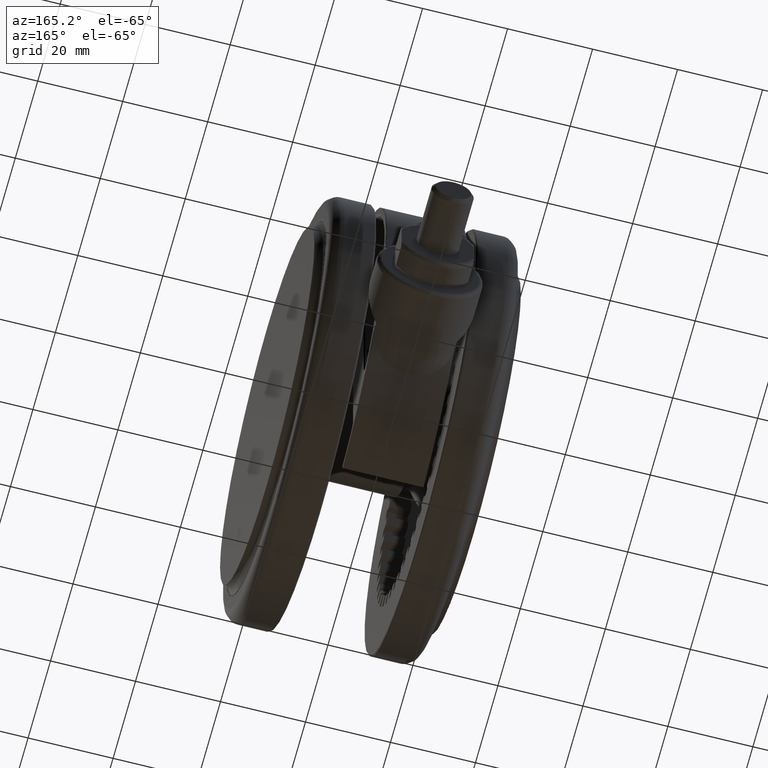
[diagram: clean part render]
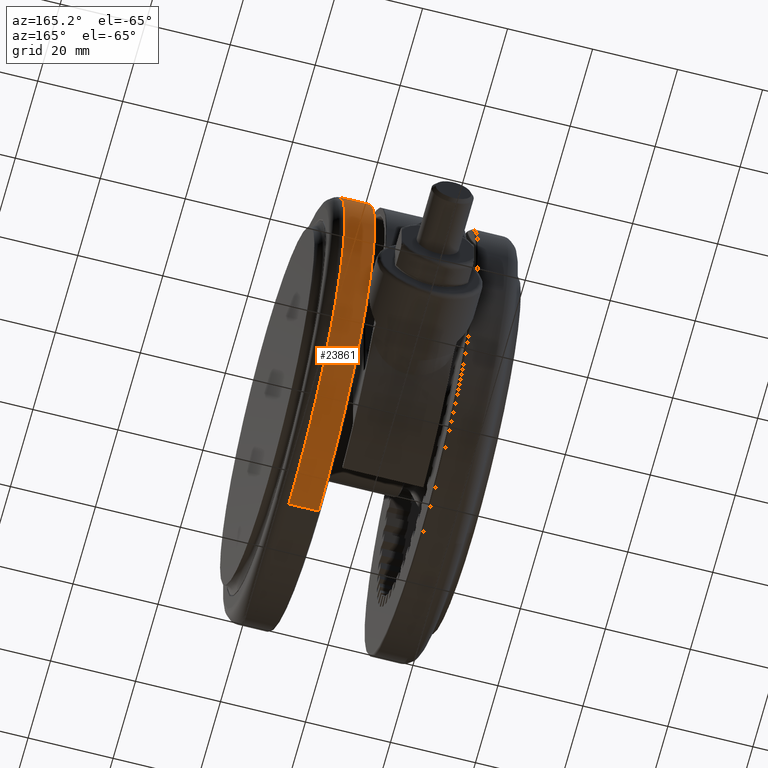
[diagram: same view with one face highlighted and labeled with its STEP entity id]
A machine part, auxiliary view. The second image highlights one B-rep face of the part: STEP entity #23861.
In plain terms, the highlighted cylindrical surface (partial cylindrical patch) has radius 50 mm, axis along (1, 0, -0).
Its self-contained STEP definition (entity closure, byte-faithful):
#618 = DIRECTION ( 'NONE',  ( 1.000000000000000000, 0.0000000000000000000, 0.0000000000000000000 ) ) ;
#663 = CYLINDRICAL_SURFACE ( 'NONE', #1488, 50.00000000000000000 ) ;
#1488 = AXIS2_PLACEMENT_3D ( 'NONE', #27768, #30527, #618 ) ;
#1616 = CIRCLE ( 'NONE', #27208, 50.00000000000000000 ) ;
#1689 = CARTESIAN_POINT ( 'NONE',  ( -49.99999999999998600, 4.388510519759959000E-015, -12.09999999999999100 ) ) ;
#1829 = VERTEX_POINT ( 'NONE', #1689 ) ;
#2533 = DIRECTION ( 'NONE',  ( 0.0000000000000000000, 0.0000000000000000000, 1.000000000000000000 ) ) ;
#3618 = VECTOR ( 'NONE', #2533, 1000.000000000000000 ) ;
#4345 = CARTESIAN_POINT ( 'NONE',  ( 1.387778780781445700E-014, -1.734723475976807100E-015, -5.099999999999880600 ) ) ;
#5332 = ORIENTED_EDGE ( 'NONE', *, *, #7088, .T. ) ;
#5590 = VERTEX_POINT ( 'NONE', #29806 ) ;
#6292 = VERTEX_POINT ( 'NONE', #19431 ) ;
#6503 = DIRECTION ( 'NONE',  ( 0.0000000000000000000, 0.0000000000000000000, 1.000000000000000000 ) ) ;
#6878 = DIRECTION ( 'NONE',  ( -1.000000000000000000, 0.0000000000000000000, 0.0000000000000000000 ) ) ;
#7088 = EDGE_CURVE ( 'NONE', #6292, #1829, #7513, .T. ) ;
#7513 = CIRCLE ( 'NONE', #15474, 50.00000000000000000 ) ;
#7710 = VECTOR ( 'NONE', #6503, 1000.000000000000000 ) ;
#7876 = ORIENTED_EDGE ( 'NONE', *, *, #29525, .T. ) ;
#10252 = LINE ( 'NONE', #12441, #3618 ) ;
#12441 = CARTESIAN_POINT ( 'NONE',  ( 50.00000000000001400, -1.734723475976807100E-015, 997.8999999999999800 ) ) ;
#13190 = CARTESIAN_POINT ( 'NONE',  ( 1.387778780781445700E-014, -1.734723475976807100E-015, -12.09999999999999100 ) ) ;
#13927 = FACE_OUTER_BOUND ( 'NONE', #17382, .T. ) ;
#14108 = EDGE_CURVE ( 'NONE', #6292, #27140, #10252, .T. ) ;
#15474 = AXIS2_PLACEMENT_3D ( 'NONE', #13190, #30665, #15699 ) ;
#15633 = CARTESIAN_POINT ( 'NONE',  ( 50.00000000000001400, 4.388510519759959000E-015, -5.099999999999880600 ) ) ;
#15699 = DIRECTION ( 'NONE',  ( 1.000000000000000000, 0.0000000000000000000, 0.0000000000000000000 ) ) ;
#17382 = EDGE_LOOP ( 'NONE', ( #5332, #21677, #7876, #24856 ) ) ;
#19431 = CARTESIAN_POINT ( 'NONE',  ( 50.00000000000001400, -1.734723475976807100E-015, -12.09999999999999100 ) ) ;
#21677 = ORIENTED_EDGE ( 'NONE', *, *, #32218, .T. ) ;
#21810 = DIRECTION ( 'NONE',  ( 0.0000000000000000000, 0.0000000000000000000, -1.000000000000000000 ) ) ;
#23861 = ADVANCED_FACE ( 'NONE', ( #13927 ), #663, .T. ) ;
#24504 = LINE ( 'NONE', #26534, #7710 ) ;
#24856 = ORIENTED_EDGE ( 'NONE', *, *, #14108, .F. ) ;
#26534 = CARTESIAN_POINT ( 'NONE',  ( -49.99999999999998600, 4.388510519759959000E-015, 997.8999999999999800 ) ) ;
#27140 = VERTEX_POINT ( 'NONE', #15633 ) ;
#27208 = AXIS2_PLACEMENT_3D ( 'NONE', #4345, #21810, #6878 ) ;
#27768 = CARTESIAN_POINT ( 'NONE',  ( 1.387778780781445700E-014, -1.734723475976807100E-015, 997.8999999999999800 ) ) ;
#29525 = EDGE_CURVE ( 'NONE', #5590, #27140, #1616, .T. ) ;
#29806 = CARTESIAN_POINT ( 'NONE',  ( -49.99999999999998600, -1.734723475976807100E-015, -5.099999999999880600 ) ) ;
#30527 = DIRECTION ( 'NONE',  ( 0.0000000000000000000, 0.0000000000000000000, 1.000000000000000000 ) ) ;
#30665 = DIRECTION ( 'NONE',  ( 0.0000000000000000000, 0.0000000000000000000, 1.000000000000000000 ) ) ;
#32218 = EDGE_CURVE ( 'NONE', #1829, #5590, #24504, .T. ) ;